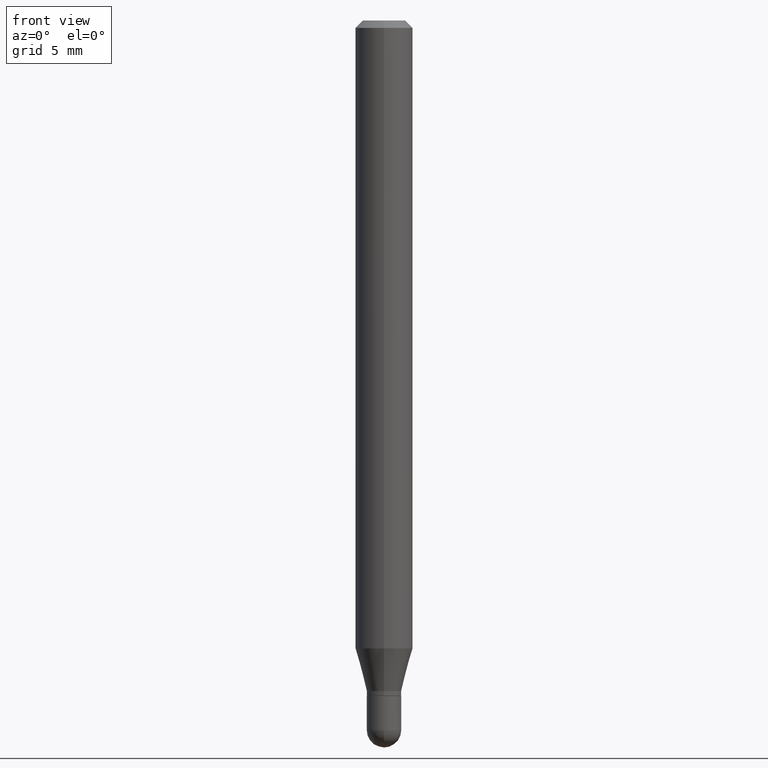
[diagram: clean part render]
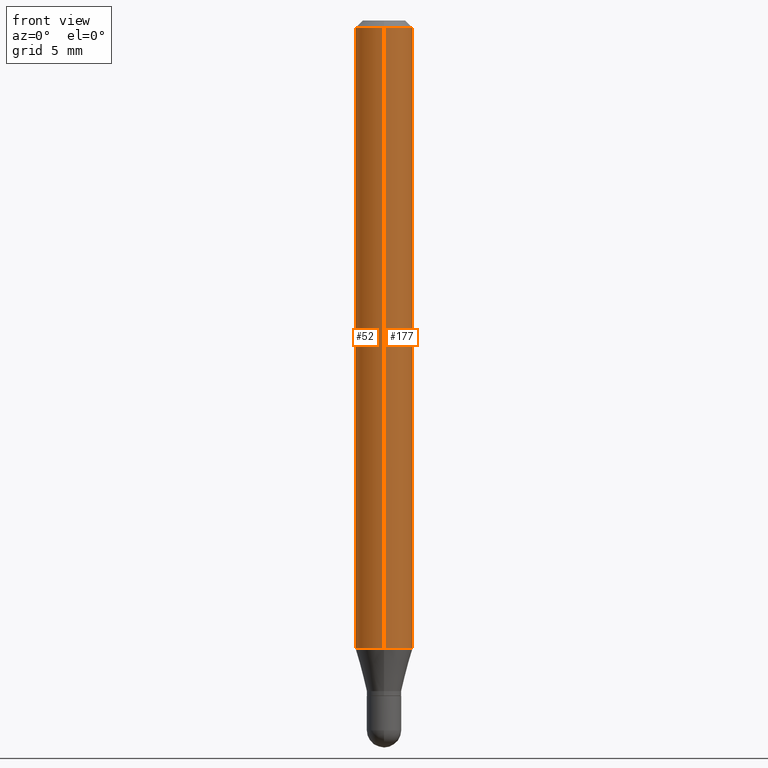
[diagram: same view with one multi-face feature highlighted, each face labeled with its STEP entity id]
A machine part, front view. The highlighted faces form ONE feature: a constant-radius fillet chain: 2 tangent blend faces with common blend radius 1.4999 mm. The faces share edges in the B-rep.
Their STEP definitions:
[1] entity #177 (Cylinder):
#2 = CARTESIAN_POINT ( 'NONE',  ( 4.195754854663704065E-16, 0.05904999999999546029, -1.292023600941374362 ) ) ;
#9 = DIRECTION ( 'NONE',  ( -2.445508718121575324E-29, 3.491424182678518709E-15, 1.000000000000000000 ) ) ;
#31 = VECTOR ( 'NONE', #330, 39.37007874015748143 ) ;
#36 = FACE_OUTER_BOUND ( 'NONE', #141, .T. ) ;
#45 = CYLINDRICAL_SURFACE ( 'NONE', #425, 0.05904999999999999832 ) ;
#47 = EDGE_CURVE ( 'NONE', #194, #286, #493, .T. ) ;
#56 = CARTESIAN_POINT ( 'NONE',  ( -4.123439461173736383E-16, -0.05905000000000005383, -0.01499999999999981730 ) ) ;
#72 = DIRECTION ( 'NONE',  ( -6.982962677686265922E-15, -1.000000000000000000, 4.626330217890369336E-15 ) ) ;
#79 = VECTOR ( 'NONE', #9, 39.37007874015748143 ) ;
#108 = EDGE_CURVE ( 'NONE', #223, #194, #221, .T. ) ;
#109 = ORIENTED_EDGE ( 'NONE', *, *, #113, .F. ) ;
#113 = EDGE_CURVE ( 'NONE', #469, #286, #497, .T. ) ;
#141 = EDGE_LOOP ( 'NONE', ( #373, #465, #109, #328 ) ) ;
#177 = ADVANCED_FACE ( 'NONE', ( #36 ), #45, .T. ) ;
#179 = DIRECTION ( 'NONE',  ( -2.445508718121575604E-29, 3.491424182678518314E-15, 1.000000000000000000 ) ) ;
#182 = DIRECTION ( 'NONE',  ( -2.445508718121575604E-29, 3.491424182678518314E-15, 1.000000000000000000 ) ) ;
#189 = LINE ( 'NONE', #326, #79 ) ;
#194 = VERTEX_POINT ( 'NONE', #2 ) ;
#206 = DIRECTION ( 'NONE',  ( -2.445508718121575604E-29, 3.491424182678518314E-15, 1.000000000000000000 ) ) ;
#216 = DIRECTION ( 'NONE',  ( -6.982962677686265922E-15, -1.000000000000000000, 3.491424182678517920E-15 ) ) ;
#221 = CIRCLE ( 'NONE', #229, 0.05904999999999999832 ) ;
#223 = VERTEX_POINT ( 'NONE', #246 ) ;
#225 = DIRECTION ( 'NONE',  ( -6.982962677686265922E-15, -1.000000000000000000, 3.505890868245046092E-15 ) ) ;
#229 = AXIS2_PLACEMENT_3D ( 'NONE', #463, #179, #72 ) ;
#241 = CARTESIAN_POINT ( 'NONE',  ( 4.195754854663708995E-16, 0.05904999999999994975, -0.01500000000000023016 ) ) ;
#246 = CARTESIAN_POINT ( 'NONE',  ( -4.123439461173425769E-16, -0.05905000000000454330, -1.292023600941373696 ) ) ;
#256 = EDGE_CURVE ( 'NONE', #223, #469, #189, .T. ) ;
#286 = VERTEX_POINT ( 'NONE', #241 ) ;
#319 = AXIS2_PLACEMENT_3D ( 'NONE', #472, #182, #225 ) ;
#326 = CARTESIAN_POINT ( 'NONE',  ( -4.123439461173739834E-16, -0.05904999999999999832, 2.061685979871664868E-16 ) ) ;
#328 = ORIENTED_EDGE ( 'NONE', *, *, #256, .F. ) ;
#330 = DIRECTION ( 'NONE',  ( -2.445508718121575324E-29, 3.491424182678518709E-15, 1.000000000000000000 ) ) ;
#351 = CARTESIAN_POINT ( 'NONE',  ( 0.000000000000000000, 0.000000000000000000, 0.000000000000000000 ) ) ;
#373 = ORIENTED_EDGE ( 'NONE', *, *, #108, .T. ) ;
#416 = CARTESIAN_POINT ( 'NONE',  ( 4.195754854663390985E-16, 0.05904999999999999832, -2.061685979871664868E-16 ) ) ;
#425 = AXIS2_PLACEMENT_3D ( 'NONE', #351, #206, #216 ) ;
#463 = CARTESIAN_POINT ( 'NONE',  ( 3.159654980120961895E-29, -4.511002444918093055E-15, -1.292023600941374140 ) ) ;
#465 = ORIENTED_EDGE ( 'NONE', *, *, #47, .T. ) ;
#469 = VERTEX_POINT ( 'NONE', #56 ) ;
#472 = CARTESIAN_POINT ( 'NONE',  ( 3.668263077182369029E-31, -5.237136274017786297E-17, -0.01500000000000002373 ) ) ;
#493 = LINE ( 'NONE', #416, #31 ) ;
#497 = CIRCLE ( 'NONE', #319, 0.05904999999999999832 ) ;
[2] entity #52 (Cylinder):
#2 = CARTESIAN_POINT ( 'NONE',  ( 4.195754854663704065E-16, 0.05904999999999546029, -1.292023600941374362 ) ) ;
#9 = DIRECTION ( 'NONE',  ( -2.445508718121575324E-29, 3.491424182678518709E-15, 1.000000000000000000 ) ) ;
#31 = VECTOR ( 'NONE', #330, 39.37007874015748143 ) ;
#47 = EDGE_CURVE ( 'NONE', #194, #286, #493, .T. ) ;
#52 = ADVANCED_FACE ( 'NONE', ( #459 ), #151, .T. ) ;
#56 = CARTESIAN_POINT ( 'NONE',  ( -4.123439461173736383E-16, -0.05905000000000005383, -0.01499999999999981730 ) ) ;
#79 = VECTOR ( 'NONE', #9, 39.37007874015748143 ) ;
#85 = CIRCLE ( 'NONE', #368, 0.05904999999999999832 ) ;
#137 = CIRCLE ( 'NONE', #419, 0.05904999999999999832 ) ;
#151 = CYLINDRICAL_SURFACE ( 'NONE', #244, 0.05904999999999999832 ) ;
#161 = EDGE_CURVE ( 'NONE', #194, #223, #85, .T. ) ;
#189 = LINE ( 'NONE', #326, #79 ) ;
#194 = VERTEX_POINT ( 'NONE', #2 ) ;
#199 = DIRECTION ( 'NONE',  ( -2.445508718121575604E-29, 3.491424182678518314E-15, 1.000000000000000000 ) ) ;
#223 = VERTEX_POINT ( 'NONE', #246 ) ;
#238 = ORIENTED_EDGE ( 'NONE', *, *, #47, .F. ) ;
#241 = CARTESIAN_POINT ( 'NONE',  ( 4.195754854663708995E-16, 0.05904999999999994975, -0.01500000000000023016 ) ) ;
#244 = AXIS2_PLACEMENT_3D ( 'NONE', #306, #449, #488 ) ;
#246 = CARTESIAN_POINT ( 'NONE',  ( -4.123439461173425769E-16, -0.05905000000000454330, -1.292023600941373696 ) ) ;
#252 = ORIENTED_EDGE ( 'NONE', *, *, #434, .F. ) ;
#256 = EDGE_CURVE ( 'NONE', #223, #469, #189, .T. ) ;
#280 = DIRECTION ( 'NONE',  ( -6.982962677686265922E-15, -1.000000000000000000, 4.626330217890369336E-15 ) ) ;
#286 = VERTEX_POINT ( 'NONE', #241 ) ;
#306 = CARTESIAN_POINT ( 'NONE',  ( 0.000000000000000000, 0.000000000000000000, 0.000000000000000000 ) ) ;
#326 = CARTESIAN_POINT ( 'NONE',  ( -4.123439461173739834E-16, -0.05904999999999999832, 2.061685979871664868E-16 ) ) ;
#330 = DIRECTION ( 'NONE',  ( -2.445508718121575324E-29, 3.491424182678518709E-15, 1.000000000000000000 ) ) ;
#340 = CARTESIAN_POINT ( 'NONE',  ( 3.668263077182369029E-31, -5.237136274017786297E-17, -0.01500000000000002373 ) ) ;
#342 = EDGE_LOOP ( 'NONE', ( #238, #494, #348, #252 ) ) ;
#348 = ORIENTED_EDGE ( 'NONE', *, *, #256, .T. ) ;
#368 = AXIS2_PLACEMENT_3D ( 'NONE', #501, #462, #280 ) ;
#416 = CARTESIAN_POINT ( 'NONE',  ( 4.195754854663390985E-16, 0.05904999999999999832, -2.061685979871664868E-16 ) ) ;
#419 = AXIS2_PLACEMENT_3D ( 'NONE', #340, #199, #495 ) ;
#434 = EDGE_CURVE ( 'NONE', #286, #469, #137, .T. ) ;
#449 = DIRECTION ( 'NONE',  ( -2.445508718121575604E-29, 3.491424182678518314E-15, 1.000000000000000000 ) ) ;
#459 = FACE_OUTER_BOUND ( 'NONE', #342, .T. ) ;
#462 = DIRECTION ( 'NONE',  ( -2.445508718121575604E-29, 3.491424182678518314E-15, 1.000000000000000000 ) ) ;
#469 = VERTEX_POINT ( 'NONE', #56 ) ;
#488 = DIRECTION ( 'NONE',  ( -6.982962677686265922E-15, -1.000000000000000000, 3.491424182678517920E-15 ) ) ;
#493 = LINE ( 'NONE', #416, #31 ) ;
#494 = ORIENTED_EDGE ( 'NONE', *, *, #161, .T. ) ;
#495 = DIRECTION ( 'NONE',  ( -6.982962677686265922E-15, -1.000000000000000000, 3.505890868245046092E-15 ) ) ;
#501 = CARTESIAN_POINT ( 'NONE',  ( 3.159654980120961895E-29, -4.511002444918093055E-15, -1.292023600941374140 ) ) ;